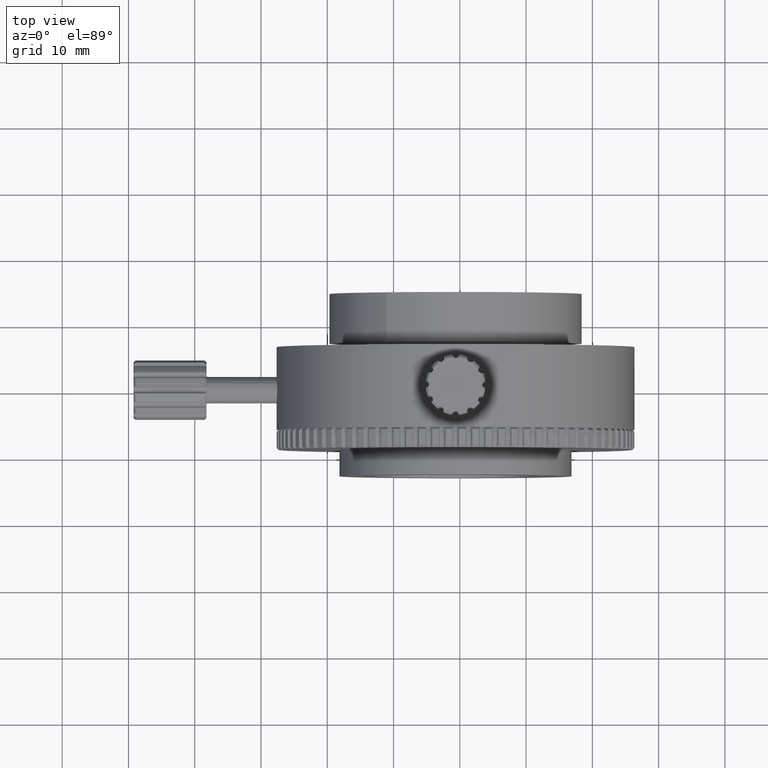
[diagram: clean part render]
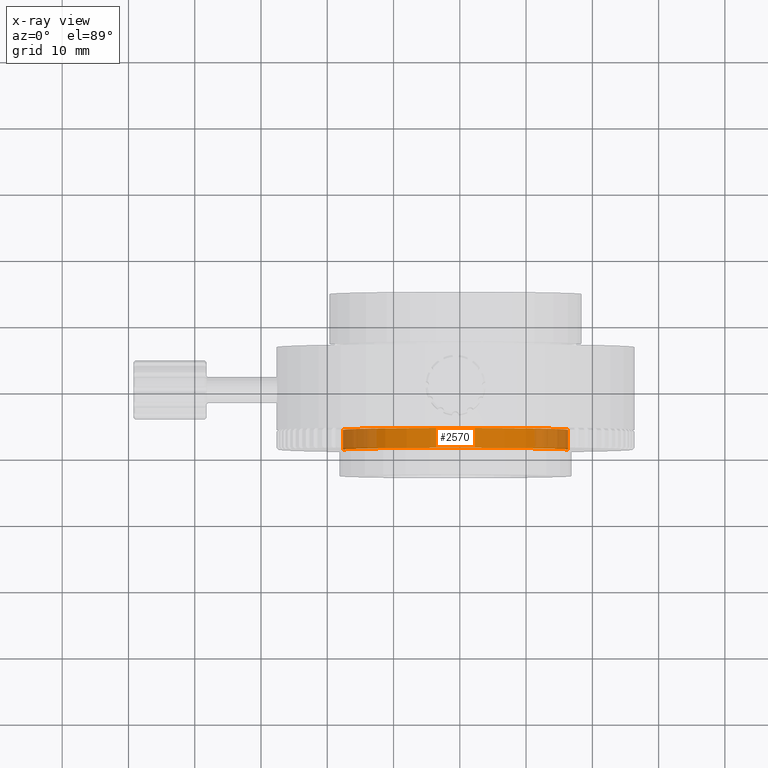
[diagram: x-ray — body ghosted, one internal face saturated and labeled with its STEP entity id]
A machine part, top view, then the same camera in x-ray: the body is ghosted and one INTERNAL B-rep face — a face not visible from any outside direction — is saturated and labeled: STEP entity #2570.
In plain terms, the highlighted cylindrical surface (partial cylindrical patch) has radius 17 mm, axis along (-0, -1, 0).
Its self-contained STEP definition (entity closure, byte-faithful):
#2187 = DIRECTION ( 'NONE',  ( 1.000000000000000000, 0.000000000000000000, 0.000000000000000000 ) ) ;
#2570 = ADVANCED_FACE ( 'NONE', ( #7461 ), #10712, .F. ) ;
#3183 = VERTEX_POINT ( 'NONE', #8348 ) ;
#3946 = DIRECTION ( 'NONE',  ( 0.000000000000000000, 1.000000000000000000, 0.000000000000000000 ) ) ;
#4021 = ORIENTED_EDGE ( 'NONE', *, *, #10910, .F. ) ;
#4561 = VECTOR ( 'NONE', #13892, 1000.000000000000000 ) ;
#4711 = CARTESIAN_POINT ( 'NONE',  ( 26.35296324910479271, 4.070142668077131098, 76.45373576090617007 ) ) ;
#4800 = EDGE_CURVE ( 'NONE', #13952, #13636, #22671, .T. ) ;
#6336 = ORIENTED_EDGE ( 'NONE', *, *, #11201, .T. ) ;
#6804 = LINE ( 'NONE', #4711, #4561 ) ;
#7425 = CARTESIAN_POINT ( 'NONE',  ( 9.352963249104790933, 1.070142668077131543, 76.45373576090617007 ) ) ;
#7461 = FACE_OUTER_BOUND ( 'NONE', #8536, .T. ) ;
#7730 = ORIENTED_EDGE ( 'NONE', *, *, #16434, .T. ) ;
#8348 = CARTESIAN_POINT ( 'NONE',  ( 26.35296324910479271, 4.070142668077131098, 76.45373576090617007 ) ) ;
#8536 = EDGE_LOOP ( 'NONE', ( #6336, #7730, #4021, #14877 ) ) ;
#8566 = AXIS2_PLACEMENT_3D ( 'NONE', #14510, #9252, #17783 ) ;
#8914 = CARTESIAN_POINT ( 'NONE',  ( 26.35296324910479271, 1.070142668077131543, 76.45373576090617007 ) ) ;
#8932 = CIRCLE ( 'NONE', #8566, 17.00000000000000000 ) ;
#9252 = DIRECTION ( 'NONE',  ( 0.000000000000000000, 1.000000000000000000, 0.000000000000000000 ) ) ;
#9531 = CARTESIAN_POINT ( 'NONE',  ( -7.647036750895209956, 1.070142668077131543, 76.45373576090617007 ) ) ;
#10288 = DIRECTION ( 'NONE',  ( -0.000000000000000000, -1.000000000000000000, 0.000000000000000000 ) ) ;
#10712 = CYLINDRICAL_SURFACE ( 'NONE', #18779, 17.00000000000000000 ) ;
#10832 = DIRECTION ( 'NONE',  ( -0.000000000000000000, -1.000000000000000000, 0.000000000000000000 ) ) ;
#10910 = EDGE_CURVE ( 'NONE', #13636, #11208, #22718, .T. ) ;
#11201 = EDGE_CURVE ( 'NONE', #13952, #3183, #8932, .T. ) ;
#11208 = VERTEX_POINT ( 'NONE', #8914 ) ;
#12637 = AXIS2_PLACEMENT_3D ( 'NONE', #7425, #3946, #2187 ) ;
#13636 = VERTEX_POINT ( 'NONE', #9531 ) ;
#13892 = DIRECTION ( 'NONE',  ( -0.000000000000000000, -1.000000000000000000, 0.000000000000000000 ) ) ;
#13952 = VERTEX_POINT ( 'NONE', #17691 ) ;
#14510 = CARTESIAN_POINT ( 'NONE',  ( 9.352963249104790933, 4.070142668077131098, 76.45373576090617007 ) ) ;
#14877 = ORIENTED_EDGE ( 'NONE', *, *, #4800, .F. ) ;
#16434 = EDGE_CURVE ( 'NONE', #3183, #11208, #6804, .T. ) ;
#17691 = CARTESIAN_POINT ( 'NONE',  ( -7.647036750895209956, 4.070142668077131098, 76.45373576090617007 ) ) ;
#17783 = DIRECTION ( 'NONE',  ( 1.000000000000000000, 0.000000000000000000, 0.000000000000000000 ) ) ;
#17953 = DIRECTION ( 'NONE',  ( -1.000000000000000000, 0.000000000000000000, 0.000000000000000000 ) ) ;
#18779 = AXIS2_PLACEMENT_3D ( 'NONE', #21580, #10832, #17953 ) ;
#19165 = CARTESIAN_POINT ( 'NONE',  ( -7.647036750895209956, 4.070142668077131098, 76.45373576090617007 ) ) ;
#21580 = CARTESIAN_POINT ( 'NONE',  ( 9.352963249104790933, 4.070142668077131098, 76.45373576090617007 ) ) ;
#21982 = VECTOR ( 'NONE', #10288, 1000.000000000000000 ) ;
#22671 = LINE ( 'NONE', #19165, #21982 ) ;
#22718 = CIRCLE ( 'NONE', #12637, 17.00000000000000000 ) ;